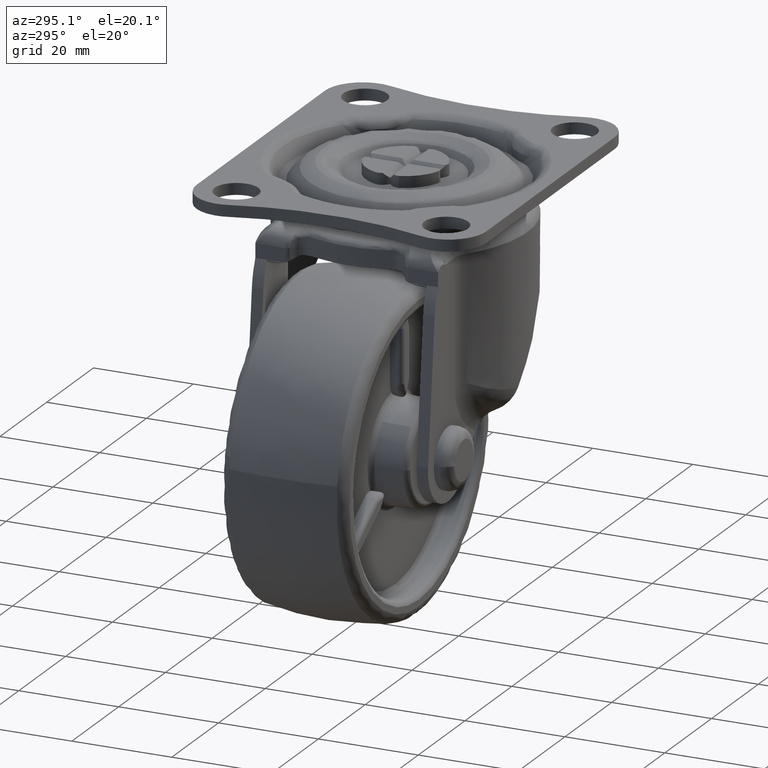
[diagram: clean part render]
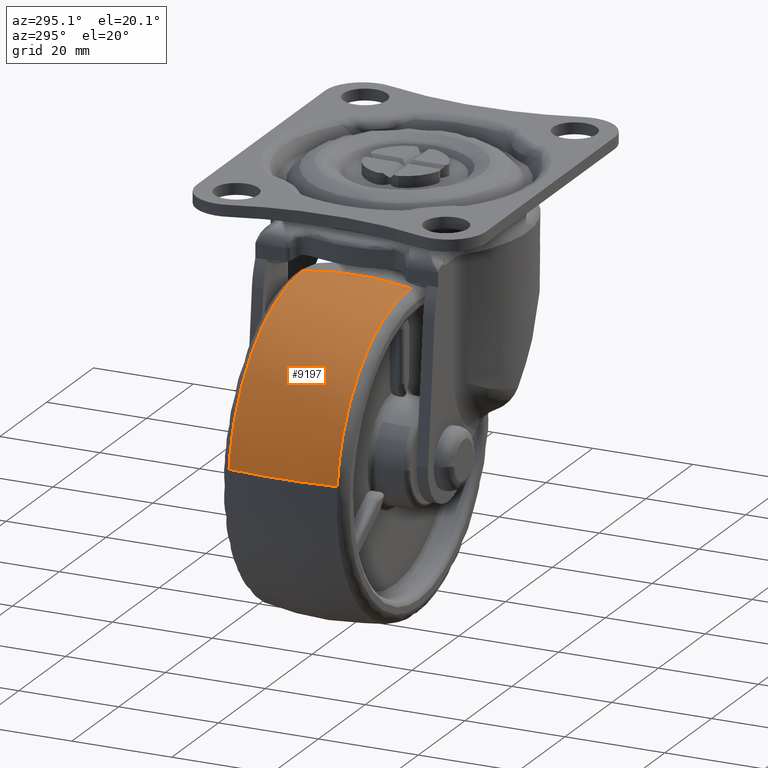
[diagram: same view with one face highlighted and labeled with its STEP entity id]
A machine part, auxiliary view. The second image highlights one B-rep face of the part: STEP entity #9197.
In plain terms, the highlighted face is a freeform B-spline surface patch.
Its self-contained STEP definition (entity closure, byte-faithful):
#8250=CARTESIAN_POINT('',(-31.031306171437532,10.833319197812269,5.919538240372914));
#8251=VERTEX_POINT('',#8250);
#8265=CARTESIAN_POINT('',(0.0,10.833312693358630,31.590867805698231));
#8266=VERTEX_POINT('',#8265);
#8267=CARTESIAN_POINT('',(0.0,10.833312693358630,31.590867805698231));
#8268=CARTESIAN_POINT('',(-26.134236885313502,10.833315791696570,31.590866326835204));
#8269=CARTESIAN_POINT('',(-31.031306171437528,10.833319197812273,5.919538240372915));
#8277=(BOUNDED_CURVE()B_SPLINE_CURVE(2,(#8267,#8268,#8269),.UNSPECIFIED.,.F.,.U.)B_SPLINE_CURVE_WITH_KNOTS((3,3),(0.500000000000000,0.717838633641216),.UNSPECIFIED.)CURVE()GEOMETRIC_REPRESENTATION_ITEM()RATIONAL_B_SPLINE_CURVE((1.0,0.744786165643599,0.934335794987471))REPRESENTATION_ITEM(''));
#8278=EDGE_CURVE('',#8266,#8251,#8277,.T.);
#8367=CARTESIAN_POINT('',(-31.379577143535670,10.833319363584661,3.647601372720884));
#8368=VERTEX_POINT('',#8367);
#8384=CARTESIAN_POINT('',(-31.031306171437528,10.833319197812271,5.919538240372914));
#8385=CARTESIAN_POINT('',(-31.246793858522842,10.833319227246829,4.789908786818141));
#8386=CARTESIAN_POINT('',(-31.379577143535666,10.833319363584662,3.647601372720885));
#8394=(BOUNDED_CURVE()B_SPLINE_CURVE(2,(#8384,#8385,#8386),.UNSPECIFIED.,.F.,.U.)B_SPLINE_CURVE_WITH_KNOTS((3,3),(0.717838633641216,0.730000073862486),.UNSPECIFIED.)CURVE()GEOMETRIC_REPRESENTATION_ITEM()RATIONAL_B_SPLINE_CURVE((0.934335794987471,0.944917923821541,0.956886263569989))REPRESENTATION_ITEM(''));
#8395=EDGE_CURVE('',#8251,#8368,#8394,.T.);
#8597=CARTESIAN_POINT('',(0.0,-10.833323770457040,31.590866891421349));
#8598=VERTEX_POINT('',#8597);
#8612=CARTESIAN_POINT('',(-31.379577540157520,-10.833320791759300,3.647601401760079));
#8613=VERTEX_POINT('',#8612);
#8614=CARTESIAN_POINT('',(0.0,-10.833323770457040,31.590866891421349));
#8615=CARTESIAN_POINT('',(-28.131416746929897,-10.833322281108170,31.590866323843102));
#8616=CARTESIAN_POINT('',(-31.379577540157520,-10.833320791759304,3.647601401760078));
#8624=(BOUNDED_CURVE()B_SPLINE_CURVE(2,(#8614,#8615,#8616),.UNSPECIFIED.,.F.,.U.)B_SPLINE_CURVE_WITH_KNOTS((3,3),(0.500000000000000,0.730000073953248),.UNSPECIFIED.)CURVE()GEOMETRIC_REPRESENTATION_ITEM()RATIONAL_B_SPLINE_CURVE((1.0,0.730538152050004,0.956886263748632))REPRESENTATION_ITEM(''));
#8625=EDGE_CURVE('',#8598,#8613,#8624,.T.);
#9130=CARTESIAN_POINT('',(0.0,-10.833323770457044,31.590866891421353));
#9131=CARTESIAN_POINT('',(0.0,-5.454809134707343,32.500000000000000));
#9132=CARTESIAN_POINT('',(0.0,0.0,32.500000000000000));
#9133=CARTESIAN_POINT('',(0.0,5.454803558437666,32.500000000000007));
#9134=CARTESIAN_POINT('',(0.0,10.833312693358632,31.590867805698231));
#9142=(BOUNDED_CURVE()B_SPLINE_CURVE(2,(#9130,#9131,#9132,#9133,#9134),.UNSPECIFIED.,.F.,.U.)B_SPLINE_CURVE_WITH_KNOTS((3,2,3),(0.417925415966082,0.500000000000000,0.582074501976963),.UNSPECIFIED.)CURVE()GEOMETRIC_REPRESENTATION_ITEM()RATIONAL_B_SPLINE_CURVE((0.963236240403744,0.978008181488991,1.0,0.978008203476086,0.963236269941288))REPRESENTATION_ITEM(''));
#9143=EDGE_CURVE('',#8598,#8266,#9142,.T.);
#9149=CARTESIAN_POINT('',(-31.379577540157516,-10.833320791759302,3.647601401760080));
#9150=CARTESIAN_POINT('',(-32.282630318438962,-5.454807719304070,3.752573792319497));
#9151=CARTESIAN_POINT('',(-32.282630162652289,-0.000000052482744,3.752573778506835));
#9152=CARTESIAN_POINT('',(-32.282630006865631,5.454806938623598,3.752573764694174));
#9153=CARTESIAN_POINT('',(-31.379577143535673,10.833319363584661,3.647601372720884));
#9161=(BOUNDED_CURVE()B_SPLINE_CURVE(2,(#9149,#9150,#9151,#9152,#9153),.UNSPECIFIED.,.F.,.U.)B_SPLINE_CURVE_WITH_KNOTS((3,2,3),(0.417925437955452,0.500000000000000,0.582074552101142),.UNSPECIFIED.)CURVE()GEOMETRIC_REPRESENTATION_ITEM()RATIONAL_B_SPLINE_CURVE((0.921707394554620,0.935842457981713,0.956886118190660,0.935842460531171,0.921707397979571))REPRESENTATION_ITEM(''));
#9162=EDGE_CURVE('',#8613,#8368,#9161,.T.);
#9167=CARTESIAN_POINT('',(0.0,-11.924450948617872,31.396850232026360));
#9168=CARTESIAN_POINT('',(0.0,-6.013252536931109,32.500000000000007));
#9169=CARTESIAN_POINT('',(0.0,0.0,32.500000000000000));
#9170=CARTESIAN_POINT('',(0.0,6.013252536931103,32.500000000000007));
#9171=CARTESIAN_POINT('',(0.0,11.924450948617862,31.396850232026360));
#9172=CARTESIAN_POINT('',(-27.958634563725980,-11.924450948617869,31.396850232026353));
#9173=CARTESIAN_POINT('',(-28.940980276875678,-6.013252536931109,32.500000000000000));
#9174=CARTESIAN_POINT('',(-28.940980276875663,0.0,32.500000000000000));
#9175=CARTESIAN_POINT('',(-28.940980276875678,6.013252536931105,32.500000000000000));
#9176=CARTESIAN_POINT('',(-27.958634563725980,11.924450948617862,31.396850232026353));
#9177=CARTESIAN_POINT('',(-31.186856756663882,-11.924450948617869,3.625213115338479));
#9178=CARTESIAN_POINT('',(-32.282628260515160,-6.013252536931108,3.752587453129897));
#9179=CARTESIAN_POINT('',(-32.282628260515168,0.0,3.752587453129897));
#9180=CARTESIAN_POINT('',(-32.282628260515160,6.013252536931104,3.752587453129897));
#9181=CARTESIAN_POINT('',(-31.186856756663882,11.924450948617856,3.625213115338479));
#9189=(BOUNDED_SURFACE()B_SPLINE_SURFACE(2,2,((#9167,#9172,#9177),(#9168,#9173,#9178),(#9169,#9174,#9179),(#9170,#9175,#9180),(#9171,#9176,#9181)),.UNSPECIFIED.,.F.,.F.,.U.)B_SPLINE_SURFACE_WITH_KNOTS((3,2,3),(3,3),(0.0,12.220039038076990,24.440078076153981),(0.0,49.485603581165577),.UNSPECIFIED.)GEOMETRIC_REPRESENTATION_ITEM()RATIONAL_B_SPLINE_SURFACE(((0.960356861572578,0.701577410168647,0.918952149347949),(0.975811199249194,0.712867394795067,0.933740190536533),(1.0,0.730538238691624,0.956886118190660),(0.975811199249194,0.712867394795067,0.933740190536533),(0.960356861572578,0.701577410168647,0.918952149347949)))REPRESENTATION_ITEM('')SURFACE());
#9190=ORIENTED_EDGE('',*,*,#8278,.T.);
#9191=ORIENTED_EDGE('',*,*,#8395,.T.);
#9192=ORIENTED_EDGE('',*,*,#9162,.F.);
#9193=ORIENTED_EDGE('',*,*,#8625,.F.);
#9194=ORIENTED_EDGE('',*,*,#9143,.T.);
#9195=EDGE_LOOP('',(#9190,#9191,#9192,#9193,#9194));
#9196=FACE_OUTER_BOUND('',#9195,.T.);
#9197=ADVANCED_FACE('',(#9196),#9189,.T.);